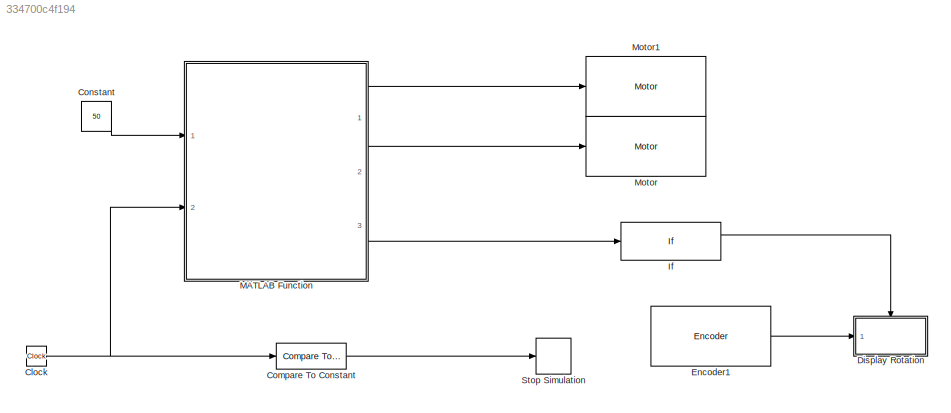
MODEL slx_334700c4f194
KIND model
CONFIG AbsTol = auto
CONFIG EnableMultiTasking = on
CONFIG FixedStep = auto
CONFIG MaxStep = auto
CONFIG MinStep = auto
CONFIG RelTol = 1e-3
CONFIG SampleTimeConstraint = Unconstrained
CONFIG Solver = FixedStepAuto
CONFIG SolverName = FixedStepAuto
CONFIG StartTime = 0.0
CONFIG StopTime = 10.0
BLOCK [Clock] Clock
  Decimation = 1000
BLOCK [Reference] Compare To Constant  REF=simulink/Logic and Bit
Operations/Compare
To Constant
  Ports = [1, 1]
  SourceBlock = simulink/Logic and Bit\nOperations/Compare\nTo Constant
  SourceType = Compare To Constant
BLOCK [Constant] Constant
  Value = 50
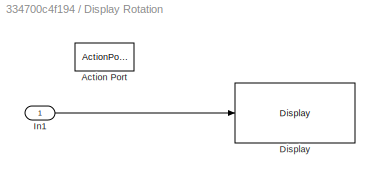
BLOCK [SubSystem] Display Rotation 
  Ports = [1, 0, 0, 0, 0, 0, 0, 1]
  RequestExecContextInheritance = off
  TreatAsAtomicUnit = on
  Variant = off
BLOCK [ActionPort] Display Rotation /Action Port
  ActionType = then
BLOCK [Reference] Display Rotation /Display  REF=legoev3lib/Display
  Ports = [1]
  SourceBlock = legoev3lib/Display
  SourceType = LEGO MINDSTORMS EV3 Display
BLOCK [Inport] Display Rotation /In1
  IconDisplay = Port number
BLOCK [Reference] Encoder1  REF=legoev3lib/Encoder
  Ports = [0, 1]
  SourceBlock = legoev3lib/Encoder
  SourceType = LEGO MINDSTORMS EV3 Encoder
BLOCK [If] If
  IfExpression = u1
  Ports = [1, 2]
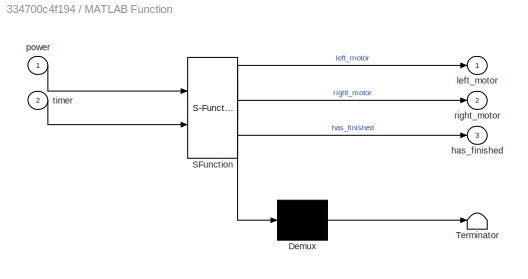
BLOCK [SubSystem] MATLAB Function
  ErrorFcn = Stateflow.Translate.translate
  PermitHierarchicalResolution = ExplicitOnly
  Ports = [2, 3]
  RequestExecContextInheritance = off
  SFBlockType = MATLAB Function
  TreatAsAtomicUnit = on
  Variant = off
BLOCK [Demux] MATLAB Function/ Demux 
  Outputs = 1
  Ports = [1, 1]
BLOCK [S-Function] MATLAB Function/ SFunction 
  EnableBusSupport = on
  FunctionName = sf_sfun
  PortCounts = [2 4]
  Ports = [2, 4]
  SFcnIsStateOwnerBlock = off
  SFunctionDeploymentMode = off
  Tag = Stateflow S-Function control 2
BLOCK [Terminator] MATLAB Function/ Terminator 
BLOCK [Outport] MATLAB Function/has_finished
  IconDisplay = Port number
  Port = 3
BLOCK [Outport] MATLAB Function/left_motor
  IconDisplay = Port number
BLOCK [Inport] MATLAB Function/power
  IconDisplay = Port number
BLOCK [Outport] MATLAB Function/right_motor
  IconDisplay = Port number
  Port = 2
BLOCK [Inport] MATLAB Function/timer
  IconDisplay = Port number
  Port = 2
BLOCK [Reference] Motor  REF=legoev3lib/Motor
  Ports = [1]
  SourceBlock = legoev3lib/Motor
  SourceType = LEGO MINDSTORMS EV3 Motor
BLOCK [Reference] Motor1  REF=legoev3lib/Motor
  Ports = [1]
  SourceBlock = legoev3lib/Motor
  SourceType = LEGO MINDSTORMS EV3 Motor
BLOCK [Stop] Stop Simulation
NET Clock:1 -> Compare To Constant:1, MATLAB Function:2
LINE Compare To Constant:1 -> Stop Simulation:1
LINE Constant:1 -> MATLAB Function:1
LINE Display Rotation /In1:1 -> Display Rotation /Display:1
LINE Encoder1:1 -> Display Rotation :1
LINE If:1 -> Display Rotation :ifaction
LINE MATLAB Function:1 -> Motor1:1
LINE MATLAB Function:2 -> Motor:1
LINE MATLAB Function:3 -> If:1
note: NET lines group one-source signal fan-out (src -> all destinations, sorted); 1:1 wires keep LINE
CHART MATLAB Function states=1 transitions=1
  STATE_LABEL 'eML_blk_kernel()'
  STATE_LABEL 'SCRIPT:\nfunction [left_motor, right_motor, has_finished] = fcn(power, timer)\n     %#codegen\n     if(timer < 2)\n         has_finished = false;\n         left_motor = power;\n         right_motor = power;\n     else\n         left_motor = 0;\n         right_motor = 0;\n         has_finished = true;\n     end      \nend\n'
